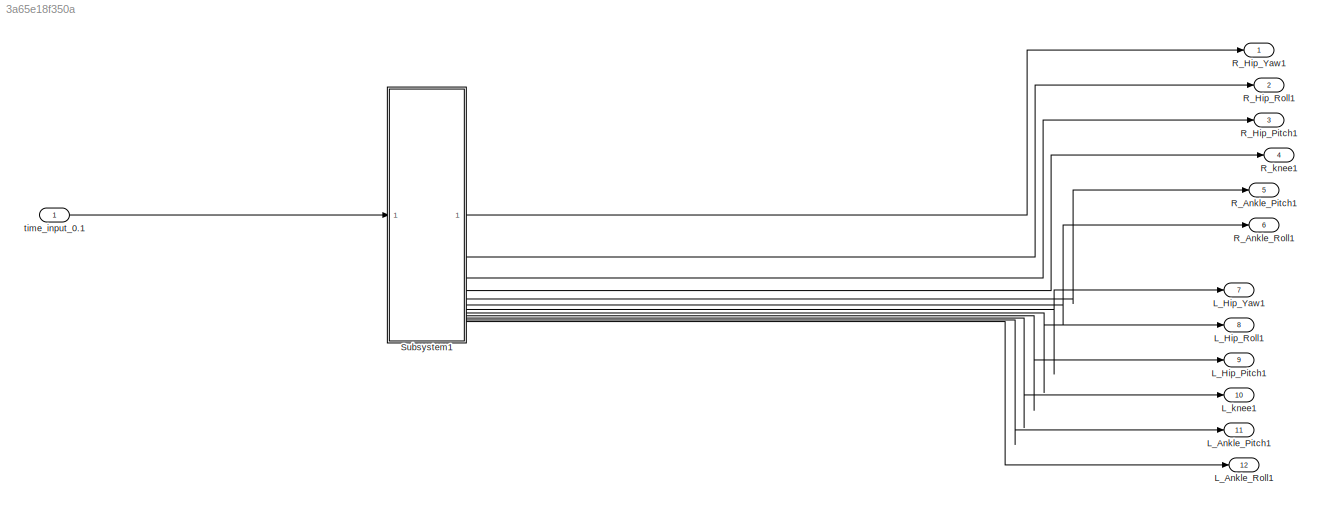
MODEL slx_3a65e18f350a
KIND model
CONFIG AbsTol = auto
CONFIG EnableMultiTasking = off
CONFIG FixedStep = auto
CONFIG MaxStep = auto
CONFIG MinStep = auto
CONFIG RelTol = 1e-3
CONFIG SampleTimeConstraint = Unconstrained
CONFIG SolverName = VariableStepAuto
CONFIG StartTime = 0.0
CONFIG StopTime = 10.0
BLOCK [Outport] L_Ankle_Pitch1
  Port = 11
BLOCK [Outport] L_Ankle_Roll1
  Port = 12
BLOCK [Outport] L_Hip_Pitch1
  Port = 9
BLOCK [Outport] L_Hip_Roll1
  Port = 8
BLOCK [Outport] L_Hip_Yaw1
  Port = 7
BLOCK [Outport] L_knee1
  Port = 10
BLOCK [Outport] R_Ankle_Pitch1
  Port = 5
BLOCK [Outport] R_Ankle_Roll1
  Port = 6
BLOCK [Outport] R_Hip_Pitch1
  Port = 3
BLOCK [Outport] R_Hip_Roll1
  Port = 2
BLOCK [Outport] R_Hip_Yaw1
BLOCK [Outport] R_knee1
  Port = 4
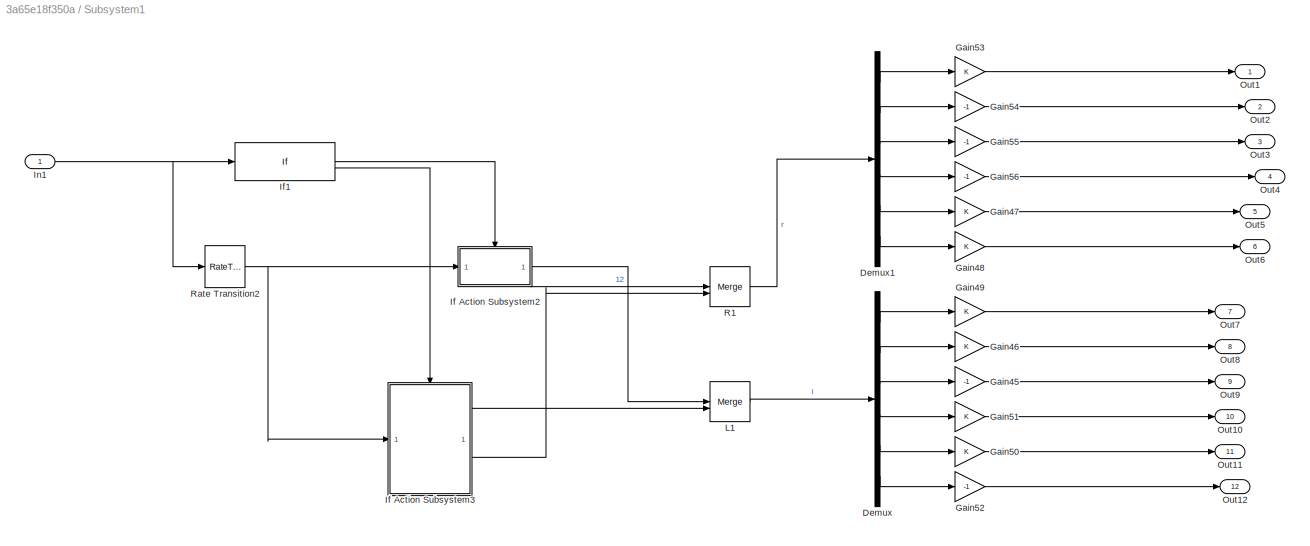
BLOCK [SubSystem] Subsystem1
BLOCK [Demux] Subsystem1/Demux
  Outputs = 6
BLOCK [Demux] Subsystem1/Demux1
  Outputs = 6
BLOCK [Gain] Subsystem1/Gain45
  Gain = -1
BLOCK [Gain] Subsystem1/Gain46
BLOCK [Gain] Subsystem1/Gain47
BLOCK [Gain] Subsystem1/Gain48
BLOCK [Gain] Subsystem1/Gain49
BLOCK [Gain] Subsystem1/Gain50
BLOCK [Gain] Subsystem1/Gain51
BLOCK [Gain] Subsystem1/Gain52
  Gain = -1
BLOCK [Gain] Subsystem1/Gain53
BLOCK [Gain] Subsystem1/Gain54
  Gain = -1
BLOCK [Gain] Subsystem1/Gain55
  Gain = -1
BLOCK [Gain] Subsystem1/Gain56
  Gain = -1
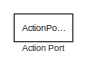
[diagram: Subsystem1/If Action Subsystem2 - part 1/4, top right region]
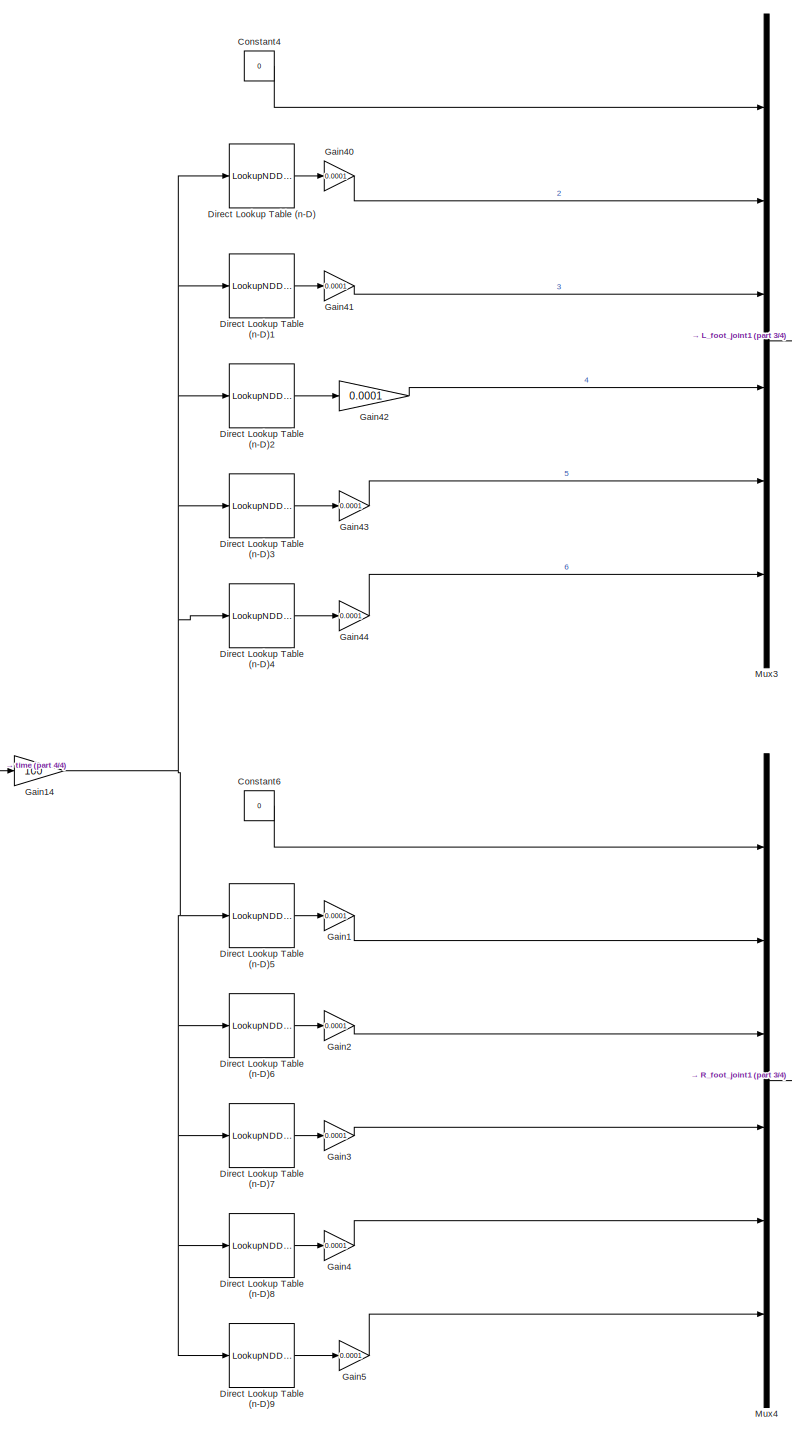
[diagram: Subsystem1/If Action Subsystem2 - part 2/4, central region]
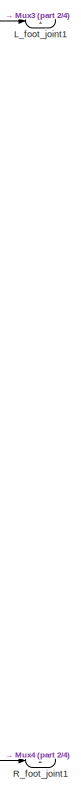
[diagram: Subsystem1/If Action Subsystem2 - part 3/4, middle right region]
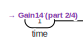
[diagram: Subsystem1/If Action Subsystem2 - part 4/4, bottom left region]
BLOCK [SubSystem] Subsystem1/If Action Subsystem2
  TreatAsAtomicUnit = on
BLOCK [ActionPort] Subsystem1/If Action Subsystem2/Action Port
BLOCK [Constant] Subsystem1/If Action Subsystem2/Constant4
  SampleTime = -1
  Value = 0
BLOCK [Constant] Subsystem1/If Action Subsystem2/Constant6
  SampleTime = -1
  Value = 0
BLOCK [LookupNDDirect] Subsystem1/If Action Subsystem2/Direct Lookup Table (n-D)
  NumberOfTableDimensions = 1
  RemoveProtectionInput = on
  Table = [0;0;0;0;0;0;0;0;0;0;0;0;0;0;0;0;0;0;0;0;0;0;0;0;0;0;0;0;0;0;0;0;0;0;0;0;0;0;0;0;0;0;0;0;0;0;0;0;0;0;0;0;0;0;0;0;0;0;0;0;0;0;0;0;0;0;0;0;0;0;0;0;0;0;0;0;0;0;0;0;0;0;0;0;0;0;0;0;0;0;0;0;0;0;0;0;0;0;0;0;0;0;0;0;0;0;0;0;0;0;0;0;0;0;0;0;0;0;0;0;0;0;0;0;0;0;0;0;0;0;0;0;0;0;0;0;0;0;0;0;0;0;0;0;0;0;0;0;0;0;0;0;0;0;0;0;0;0;0;0;0;0;0;0;0;0;0;0;0;0;0;0;0;0;0;0;0;0;0;0;0;0;0;0;0;0;0;0;0;0;0;0;0;0;0;0;0;0;0;0...<+6884ch>
BLOCK [LookupNDDirect] Subsystem1/If Action Subsystem2/Direct Lookup Table (n-D)1
  NumberOfTableDimensions = 1
  RemoveProtectionInput = on
  Table = [0;0;0;0;0;0;0;0;0;0;0;0;0;0;0;0;0;0;0;0;0;0;0;0;0;0;0;0;0;0;0;0;0;0;0;0;0;0;0;0;0;0;0;0;0;0;0;0;0;0;0;0;0;0;0;0;0;0;0;0;0;0;0;0;0;0;0;0;0;0;0;0;0;0;0;0;0;0;0;0;0;0;0;0;0;0;0;0;0;0;0;0;0;0;0;0;0;0;0;0;0;0;0;0;0;0;0;0;0;0;0;0;0;0;0;0;0;0;0;0;0;0;0;0;0;0;0;0;0;0;0;0;0;0;0;0;0;0;0;0;0;0;0;0;0;0;0;0;0;0;0;0;0;0;0;0;0;0;0;0;0;0;0;0;0;0;0;0;0;0;0;0;0;0;0;0;0;0;0;0;0;0;0;0;0;0;0;0;0;0;0;0;0;0;0;0;0;0;0;0...<+8058ch>
BLOCK [LookupNDDirect] Subsystem1/If Action Subsystem2/Direct Lookup Table (n-D)2
  NumberOfTableDimensions = 1
  RemoveProtectionInput = on
  Table = [0;0;0;0;0;0;0;0;0;0;0;0;0;0;0;0;0;0;0;0;0;0;0;0;0;0;0;0;0;0;0;0;0;0;0;0;0;0;0;0;0;0;0;0;0;0;0;0;0;0;0;0;0;0;0;0;0;0;0;0;0;0;0;0;0;0;0;0;0;0;0;0;0;0;0;0;0;0;0;0;0;0;0;0;0;0;0;0;0;0;0;0;0;0;0;0;0;0;0;0;0;0;0;0;0;0;0;0;0;0;0;0;0;0;0;0;0;0;0;0;0;0;0;0;0;0;0;0;0;0;0;0;0;0;0;0;0;0;0;0;0;0;0;0;0;0;0;0;0;0;0;0;0;0;0;0;0;0;0;0;0;0;0;0;0;0;0;0;0;0;0;0;0;0;0;0;0;0;0;0;0;0;0;0;0;0;0;0;0;0;0;0;0;0;0;0;0;0;0;0...<+9363ch>
BLOCK [LookupNDDirect] Subsystem1/If Action Subsystem2/Direct Lookup Table (n-D)3
  NumberOfTableDimensions = 1
  RemoveProtectionInput = on
  Table = [0;0;0;0;0;0;0;0;0;0;0;0;0;0;0;0;0;0;0;0;0;0;0;0;0;0;0;0;0;0;0;0;0;0;0;0;0;0;0;0;0;0;0;0;0;0;0;0;0;0;0;0;0;0;0;0;0;0;0;0;0;0;0;0;0;0;0;0;0;0;0;0;0;0;0;0;0;0;0;0;0;0;0;0;0;0;0;0;0;0;0;0;0;0;0;0;0;0;0;0;0;0;0;0;0;0;0;0;0;0;0;0;0;0;0;0;0;0;0;0;0;0;0;0;0;0;0;0;0;0;0;0;0;0;0;0;0;0;0;0;0;0;0;0;0;0;0;0;0;0;0;0;0;0;0;0;0;0;0;0;0;0;0;0;0;0;0;0;0;0;0;0;0;0;0;0;0;0;0;0;0;0;0;0;0;0;0;0;0;0;0;0;0;0;0;0;0;0;0;0...<+8314ch>
BLOCK [LookupNDDirect] Subsystem1/If Action Subsystem2/Direct Lookup Table (n-D)4
  NumberOfTableDimensions = 1
  RemoveProtectionInput = on
  Table = [0;0;0;0;0;0;0;0;0;0;0;0;0;0;0;0;0;0;0;0;0;0;0;0;0;0;0;0;0;0;0;0;0;0;0;0;0;0;0;0;0;0;0;0;0;0;0;0;0;0;0;0;0;0;0;0;0;0;0;0;0;0;0;0;0;0;0;0;0;0;0;0;0;0;0;0;0;0;0;0;0;0;0;0;0;0;0;0;0;0;0;0;0;0;0;0;0;0;0;0;0;0;0;0;0;0;0;0;0;0;0;0;0;0;0;0;0;0;0;0;0;0;0;0;0;0;0;0;0;0;0;0;0;0;0;0;0;0;0;0;0;0;0;0;0;0;0;0;0;0;0;0;0;0;0;0;0;0;0;0;0;0;0;0;0;0;0;0;0;0;0;0;0;0;0;0;0;0;0;0;0;0;0;0;0;0;0;0;0;0;0;0;0;0;0;0;0;0;0;0...<+5915ch>
BLOCK [LookupNDDirect] Subsystem1/If Action Subsystem2/Direct Lookup Table (n-D)5
  NumberOfTableDimensions = 1
  RemoveProtectionInput = on
  Table = [0;0;0;0;0;0;0;0;0;0;0;0;0;0;0;0;0;0;0;0;0;0;0;0;0;0;0;0;0;0;0;0;0;0;0;0;0;0;0;0;0;0;0;0;0;0;0;0;0;0;0;0;0;0;0;0;0;0;0;0;0;0;0;0;0;0;0;0;0;0;0;0;0;0;0;0;0;0;0;0;0;0;0;0;0;0;0;0;0;0;0;0;0;0;0;0;0;0;0;0;0;0;0;0;0;0;0;0;0;0;0;0;0;0;0;0;0;0;0;0;0;0;0;0;0;0;0;0;0;0;0;0;0;0;0;0;0;0;0;0;0;0;0;0;0;0;0;0;0;0;0;0;0;0;0;0;0;0;0;0;0;0;0;0;0;0;0;0;0;0;0;0;0;0;0;0;0;0;0;0;0;0;0;0;0;0;0;0;0;0;0;0;0;0;0;0;0;0;0;0...<+6884ch>
BLOCK [LookupNDDirect] Subsystem1/If Action Subsystem2/Direct Lookup Table (n-D)6
  NumberOfTableDimensions = 1
  RemoveProtectionInput = on
  Table = [0;0;0;0;0;0;0;0;0;0;0;0;0;0;0;0;0;0;0;0;0;0;0;0;0;0;0;0;0;0;0;0;0;0;0;0;0;0;0;0;0;0;0;0;0;0;0;0;0;0;0;0;0;0;0;0;0;0;0;0;0;0;0;0;0;0;0;0;0;0;0;0;0;0;0;0;0;0;0;0;0;0;0;0;0;0;0;0;0;0;0;0;0;0;0;0;0;0;0;0;0;0;0;0;0;0;0;0;0;0;0;0;0;0;0;0;0;0;0;0;0;0;0;0;0;0;0;0;0;0;0;0;0;0;0;0;0;0;0;0;0;0;0;0;0;0;0;0;0;0;0;0;0;0;0;0;0;0;0;0;0;0;0;0;0;0;0;0;0;0;0;0;0;0;0;0;0;0;0;0;0;0;0;0;0;0;0;0;0;0;0;0;0;0;0;0;0;0;0;0...<+8058ch>
BLOCK [LookupNDDirect] Subsystem1/If Action Subsystem2/Direct Lookup Table (n-D)7
  NumberOfTableDimensions = 1
  RemoveProtectionInput = on
  Table = [0;0;0;0;0;0;0;0;0;0;0;0;0;0;0;0;0;0;0;0;0;0;0;0;0;0;0;0;0;0;0;0;0;0;0;0;0;0;0;0;0;0;0;0;0;0;0;0;0;0;0;0;0;0;0;0;0;0;0;0;0;0;0;0;0;0;0;0;0;0;0;0;0;0;0;0;0;0;0;0;0;0;0;0;0;0;0;0;0;0;0;0;0;0;0;0;0;0;0;0;0;0;0;0;0;0;0;0;0;0;0;0;0;0;0;0;0;0;0;0;0;0;0;0;0;0;0;0;0;0;0;0;0;0;0;0;0;0;0;0;0;0;0;0;0;0;0;0;0;0;0;0;0;0;0;0;0;0;0;0;0;0;0;0;0;0;0;0;0;0;0;0;0;0;0;0;0;0;0;0;0;0;0;0;0;0;0;0;0;0;0;0;0;0;0;0;0;0;0;0...<+9363ch>
BLOCK [LookupNDDirect] Subsystem1/If Action Subsystem2/Direct Lookup Table (n-D)8
  NumberOfTableDimensions = 1
  RemoveProtectionInput = on
  Table = [0;0;0;0;0;0;0;0;0;0;0;0;0;0;0;0;0;0;0;0;0;0;0;0;0;0;0;0;0;0;0;0;0;0;0;0;0;0;0;0;0;0;0;0;0;0;0;0;0;0;0;0;0;0;0;0;0;0;0;0;0;0;0;0;0;0;0;0;0;0;0;0;0;0;0;0;0;0;0;0;0;0;0;0;0;0;0;0;0;0;0;0;0;0;0;0;0;0;0;0;0;0;0;0;0;0;0;0;0;0;0;0;0;0;0;0;0;0;0;0;0;0;0;0;0;0;0;0;0;0;0;0;0;0;0;0;0;0;0;0;0;0;0;0;0;0;0;0;0;0;0;0;0;0;0;0;0;0;0;0;0;0;0;0;0;0;0;0;0;0;0;0;0;0;0;0;0;0;0;0;0;0;0;0;0;0;0;0;0;0;0;0;0;0;0;0;0;0;0;0...<+8075ch>
BLOCK [LookupNDDirect] Subsystem1/If Action Subsystem2/Direct Lookup Table (n-D)9
  NumberOfTableDimensions = 1
  RemoveProtectionInput = on
  Table = [0;0;0;0;0;0;0;0;0;0;0;0;0;0;0;0;0;0;0;0;0;0;0;0;0;0;0;0;0;0;0;0;0;0;0;0;0;0;0;0;0;0;0;0;0;0;0;0;0;0;0;0;0;0;0;0;0;0;0;0;0;0;0;0;0;0;0;0;0;0;0;0;0;0;0;0;0;0;0;0;0;0;0;0;0;0;0;0;0;0;0;0;0;0;0;0;0;0;0;0;0;0;0;0;0;0;0;0;0;0;0;0;0;0;0;0;0;0;0;0;0;0;0;0;0;0;0;0;0;0;0;0;0;0;0;0;0;0;0;0;0;0;0;0;0;0;0;0;0;0;0;0;0;0;0;0;0;0;0;0;0;0;0;0;0;0;0;0;0;0;0;0;0;0;0;0;0;0;0;0;0;0;0;0;0;0;0;0;0;0;0;0;0;0;0;0;0;0;0;0...<+5915ch>
BLOCK [Gain] Subsystem1/If Action Subsystem2/Gain1
  Gain = 0.0001
BLOCK [Gain] Subsystem1/If Action Subsystem2/Gain14
  Gain = 100
BLOCK [Gain] Subsystem1/If Action Subsystem2/Gain2
  Gain = 0.0001
BLOCK [Gain] Subsystem1/If Action Subsystem2/Gain3
  Gain = 0.0001
BLOCK [Gain] Subsystem1/If Action Subsystem2/Gain4
  Gain = 0.0001
BLOCK [Gain] Subsystem1/If Action Subsystem2/Gain40
  Gain = 0.0001
BLOCK [Gain] Subsystem1/If Action Subsystem2/Gain41
  Gain = 0.0001
BLOCK [Gain] Subsystem1/If Action Subsystem2/Gain42
  Gain = 0.0001
BLOCK [Gain] Subsystem1/If Action Subsystem2/Gain43
  Gain = 0.0001
BLOCK [Gain] Subsystem1/If Action Subsystem2/Gain44
  Gain = 0.0001
BLOCK [Gain] Subsystem1/If Action Subsystem2/Gain5
  Gain = 0.0001
BLOCK [Outport] Subsystem1/If Action Subsystem2/L_foot_joint1
BLOCK [Mux] Subsystem1/If Action Subsystem2/Mux3
  DisplayOption = bar
  Inputs = 6
BLOCK [Mux] Subsystem1/If Action Subsystem2/Mux4
  DisplayOption = bar
  Inputs = 6
BLOCK [Outport] Subsystem1/If Action Subsystem2/R_foot_joint1
  Port = 2
BLOCK [Inport] Subsystem1/If Action Subsystem2/time
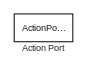
[diagram: Subsystem1/If Action Subsystem3 - part 1/4, top center region]
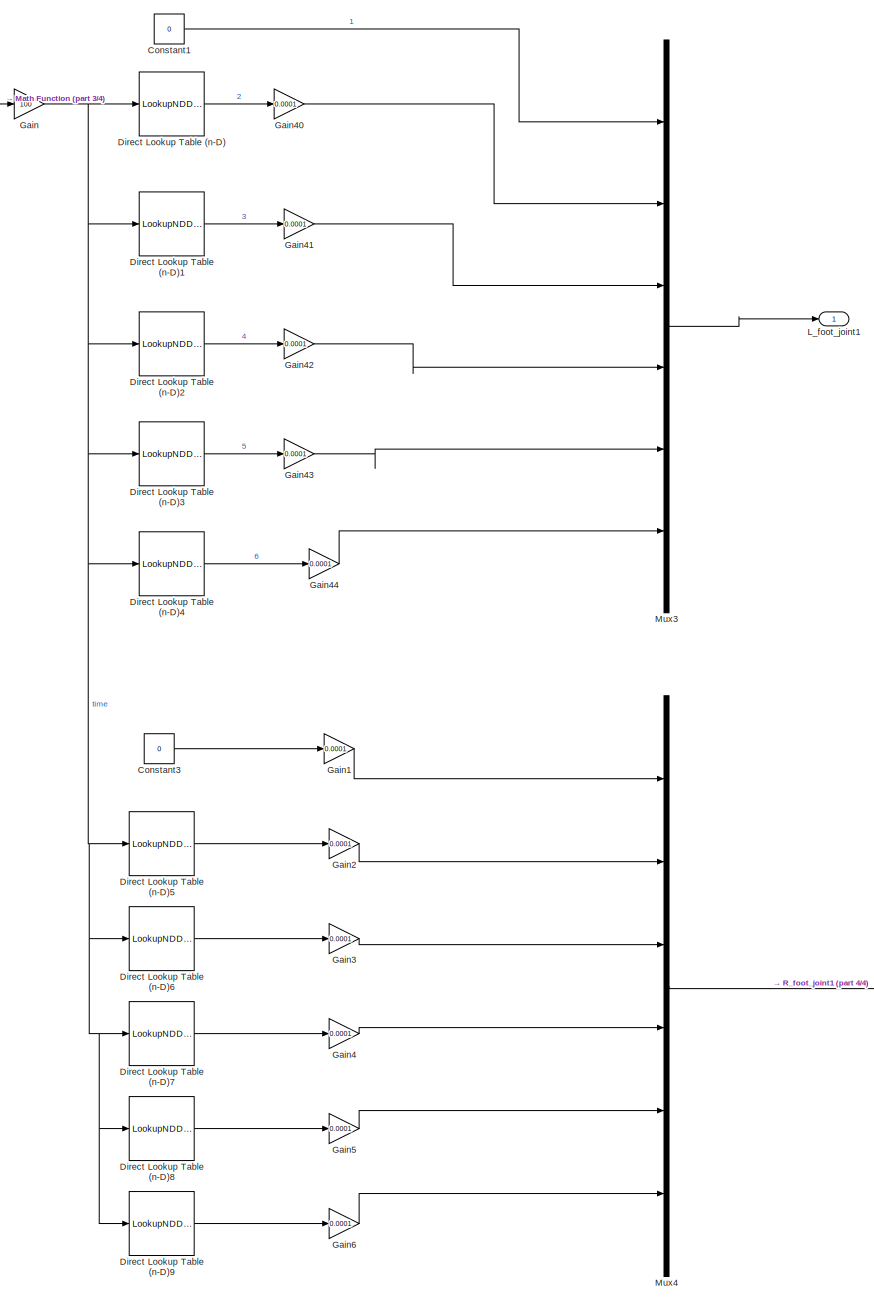
[diagram: Subsystem1/If Action Subsystem3 - part 2/4, center side, full height]
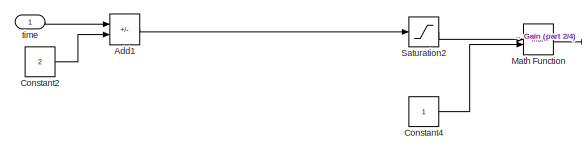
[diagram: Subsystem1/If Action Subsystem3 - part 3/4, top left region]
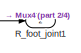
[diagram: Subsystem1/If Action Subsystem3 - part 4/4, bottom right region]
BLOCK [SubSystem] Subsystem1/If Action Subsystem3
  TreatAsAtomicUnit = on
BLOCK [ActionPort] Subsystem1/If Action Subsystem3/Action Port
BLOCK [Sum] Subsystem1/If Action Subsystem3/Add1
  IconShape = rectangular
  Inputs = +-
BLOCK [Constant] Subsystem1/If Action Subsystem3/Constant1
  SampleTime = -1
  Value = 0
BLOCK [Constant] Subsystem1/If Action Subsystem3/Constant2
  Value = 2
BLOCK [Constant] Subsystem1/If Action Subsystem3/Constant3
  SampleTime = -1
  Value = 0
BLOCK [Constant] Subsystem1/If Action Subsystem3/Constant4
BLOCK [LookupNDDirect] Subsystem1/If Action Subsystem3/Direct Lookup Table (n-D)
  NumberOfTableDimensions = 1
  RemoveProtectionInput = on
  Table = [-65;-45;-25;-5;16;36;56;76;97;117;137;157;177;197;217;237;257;277;296;316;336;355;375;395;414;433;453;472;491;510;529;548;567;586;605;623;642;660;679;697;715;733;751;769;787;805;823;840;858;875;892;909;926;943;960;977;993;1010;1026;1043;1059;1075;1091;1107;1122;1138;1153;1169;1184;1199;1214;1229;1244;1259;1274;1288;1302;1317;1331;1345;1359;1373;1386;1400;1413;1427;1440;1453;1466;1479;1492;1505;15...<+4858ch>
BLOCK [LookupNDDirect] Subsystem1/If Action Subsystem3/Direct Lookup Table (n-D)1
  NumberOfTableDimensions = 1
  RemoveProtectionInput = on
  Table = [5684;5686;5688;5690;5692;5694;5696;5698;5700;5702;5704;5706;5707;5709;5711;5712;5714;5715;5717;5718;5720;5721;5722;5723;5725;5726;5727;5728;5729;5730;5731;5732;5732;5733;5734;5735;5735;5736;5737;5737;5738;5738;5739;5739;5739;5740;5740;5740;5741;5741;5741;5741;5741;5741;5741;5741;5741;5741;5741;5741;5741;5741;5741;5741;5740;5740;5740;5740;5739;5739;5739;5738;5738;5737;5737;5736;5736;5735;5735;5734...<+4601ch>
BLOCK [LookupNDDirect] Subsystem1/If Action Subsystem3/Direct Lookup Table (n-D)2
  NumberOfTableDimensions = 1
  RemoveProtectionInput = on
  Table = [14920;14927;14933;14940;14947;14953;14959;14965;14971;14977;14982;14988;14993;14998;15003;15008;15013;15018;15022;15026;15031;15035;15039;15042;15046;15049;15053;15056;15059;15062;15065;15068;15070;15073;15075;15078;15080;15082;15083;15085;15087;15088;15090;15091;15092;15093;15094;15095;15096;15097;15097;15098;15098;15098;15098;15098;15098;15098;15098;15098;15097;15097;15096;15096;15095;15094;150...<+5601ch>
BLOCK [LookupNDDirect] Subsystem1/If Action Subsystem3/Direct Lookup Table (n-D)3
  NumberOfTableDimensions = 1
  RemoveProtectionInput = on
  Table = [9236;9241;9245;9250;9254;9258;9263;9267;9271;9275;9278;9282;9286;9289;9293;9296;9299;9302;9305;9308;9311;9314;9316;9319;9321;9324;9326;9328;9330;9332;9334;9336;9338;9340;9341;9343;9344;9346;9347;9348;9349;9350;9351;9352;9353;9353;9354;9355;9355;9356;9356;9356;9357;9357;9357;9357;9357;9357;9357;9356;9356;9356;9356;9355;9355;9354;9354;9353;9352;9352;9351;9350;9349;9348;9347;9346;9345;9344;9343;9342...<+4847ch>
BLOCK [LookupNDDirect] Subsystem1/If Action Subsystem3/Direct Lookup Table (n-D)4
  NumberOfTableDimensions = 1
  RemoveProtectionInput = on
  Table = [65;45;25;5;-16;-36;-56;-76;-97;-117;-137;-157;-177;-197;-217;-237;-257;-277;-296;-316;-336;-355;-375;-395;-414;-433;-453;-472;-491;-510;-529;-548;-567;-586;-605;-623;-642;-660;-679;-697;-715;-733;-751;-769;-787;-805;-823;-840;-858;-875;-892;-909;-926;-943;-960;-977;-993;-1010;-1026;-1043;-1059;-1075;-1091;-1107;-1122;-1138;-1153;-1169;-1184;-1199;-1214;-1229;-1244;-1259;-1274;-1288;-1302;-1317;-1...<+4849ch>
BLOCK [LookupNDDirect] Subsystem1/If Action Subsystem3/Direct Lookup Table (n-D)5
  NumberOfTableDimensions = 1
  RemoveProtectionInput = on
  Table = [-65;-45;-25;-5;16;36;56;76;97;117;137;157;177;197;217;237;257;277;296;316;336;355;375;395;414;433;453;472;491;510;530;549;568;587;605;624;643;662;680;699;717;736;754;772;791;809;827;845;863;881;898;916;934;951;969;986;1004;1021;1038;1055;1072;1089;1106;1123;1140;1156;1173;1190;1206;1222;1239;1255;1271;1287;1303;1319;1335;1351;1366;1382;1398;1413;1428;1444;1459;1474;1489;1504;1519;1534;1549;1564;1...<+4860ch>
BLOCK [LookupNDDirect] Subsystem1/If Action Subsystem3/Direct Lookup Table (n-D)6
  NumberOfTableDimensions = 1
  RemoveProtectionInput = on
  Table = [5668;5666;5664;5662;5659;5657;5655;5652;5650;5647;5645;5642;5639;5637;5634;5631;5628;5625;5623;5620;5617;5614;5611;5607;5604;5602;5599;5596;5594;5592;5590;5588;5586;5585;5584;5583;5582;5581;5580;5580;5580;5579;5580;5580;5580;5581;5582;5583;5584;5585;5586;5588;5590;5591;5594;5596;5598;5601;5603;5606;5609;5612;5615;5619;5622;5626;5630;5634;5638;5642;5647;5651;5656;5661;5665;5670;5676;5681;5686;5692...<+4601ch>
BLOCK [LookupNDDirect] Subsystem1/If Action Subsystem3/Direct Lookup Table (n-D)7
  NumberOfTableDimensions = 1
  RemoveProtectionInput = on
  Table = [14873;14866;14859;14853;14846;14838;14831;14824;14816;14808;14801;14793;14784;14776;14768;14759;14751;14742;14733;14724;14715;14706;14696;14687;14678;14669;14661;14653;14646;14640;14634;14628;14623;14619;14615;14612;14609;14606;14605;14603;14603;14602;14603;14603;14605;14606;14609;14611;14615;14619;14623;14628;14633;14639;14645;14651;14659;14666;14674;14683;14692;14701;14711;14722;14733;14744;147...<+5601ch>
BLOCK [LookupNDDirect] Subsystem1/If Action Subsystem3/Direct Lookup Table (n-D)8
  NumberOfTableDimensions = 1
  RemoveProtectionInput = on
  Table = [9205;9200;9196;9191;9186;9181;9176;9171;9166;9161;9156;9151;9145;9140;9134;9128;9122;9117;9111;9105;9098;9092;9086;9080;9073;9068;9062;9057;9052;9048;9044;9040;9037;9034;9031;9029;9027;9026;9024;9024;9023;9023;9023;9024;9024;9026;9027;9029;9031;9034;9037;9040;9043;9047;9051;9056;9061;9066;9071;9077;9083;9089;9096;9103;9110;9118;9126;9134;9142;9151;9160;9169;9179;9189;9199;9209;9220;9231;9242;9253...<+4846ch>
BLOCK [LookupNDDirect] Subsystem1/If Action Subsystem3/Direct Lookup Table (n-D)9
  NumberOfTableDimensions = 1
  RemoveProtectionInput = on
  Table = [65;45;25;5;-16;-36;-56;-76;-97;-117;-137;-157;-177;-197;-217;-237;-257;-277;-296;-316;-336;-355;-375;-395;-414;-433;-453;-472;-491;-510;-530;-549;-568;-587;-605;-624;-643;-662;-680;-699;-717;-736;-754;-772;-791;-809;-827;-845;-863;-881;-898;-916;-934;-951;-969;-986;-1004;-1021;-1038;-1055;-1072;-1089;-1106;-1123;-1140;-1156;-1173;-1190;-1206;-1222;-1239;-1255;-1271;-1287;-1303;-1319;-1335;-1351;-...<+4851ch>
BLOCK [Gain] Subsystem1/If Action Subsystem3/Gain
  Gain = 100
BLOCK [Gain] Subsystem1/If Action Subsystem3/Gain1
  Gain = 0.0001
BLOCK [Gain] Subsystem1/If Action Subsystem3/Gain2
  Gain = 0.0001
BLOCK [Gain] Subsystem1/If Action Subsystem3/Gain3
  Gain = 0.0001
BLOCK [Gain] Subsystem1/If Action Subsystem3/Gain4
  Gain = 0.0001
BLOCK [Gain] Subsystem1/If Action Subsystem3/Gain40
  Gain = 0.0001
BLOCK [Gain] Subsystem1/If Action Subsystem3/Gain41
  Gain = 0.0001
BLOCK [Gain] Subsystem1/If Action Subsystem3/Gain42
  Gain = 0.0001
BLOCK [Gain] Subsystem1/If Action Subsystem3/Gain43
  Gain = 0.0001
BLOCK [Gain] Subsystem1/If Action Subsystem3/Gain44
  Gain = 0.0001
BLOCK [Gain] Subsystem1/If Action Subsystem3/Gain5
  Gain = 0.0001
BLOCK [Gain] Subsystem1/If Action Subsystem3/Gain6
  Gain = 0.0001
BLOCK [Outport] Subsystem1/If Action Subsystem3/L_foot_joint1
BLOCK [Math] Subsystem1/If Action Subsystem3/Math Function
  Operator = mod
BLOCK [Mux] Subsystem1/If Action Subsystem3/Mux3
  DisplayOption = bar
  Inputs = 6
BLOCK [Mux] Subsystem1/If Action Subsystem3/Mux4
  DisplayOption = bar
  Inputs = 6
BLOCK [Outport] Subsystem1/If Action Subsystem3/R_foot_joint1
  Port = 2
BLOCK [Saturate] Subsystem1/If Action Subsystem3/Saturation2
  LowerLimit = 0
  UpperLimit = inf
BLOCK [Inport] Subsystem1/If Action Subsystem3/time
BLOCK [If] Subsystem1/If1
  IfExpression = u1<= 2
BLOCK [Inport] Subsystem1/In1
BLOCK [Merge] Subsystem1/L1
BLOCK [Outport] Subsystem1/Out1
BLOCK [Outport] Subsystem1/Out10
  Port = 10
BLOCK [Outport] Subsystem1/Out11
  Port = 11
BLOCK [Outport] Subsystem1/Out12
  Port = 12
BLOCK [Outport] Subsystem1/Out2
  Port = 2
BLOCK [Outport] Subsystem1/Out3
  Port = 3
BLOCK [Outport] Subsystem1/Out4
  Port = 4
BLOCK [Outport] Subsystem1/Out5
  Port = 5
BLOCK [Outport] Subsystem1/Out6
  Port = 6
BLOCK [Outport] Subsystem1/Out7
  Port = 7
BLOCK [Outport] Subsystem1/Out8
  Port = 8
BLOCK [Outport] Subsystem1/Out9
  Port = 9
BLOCK [Merge] Subsystem1/R1
BLOCK [RateTransition] Subsystem1/Rate Transition2
  OutPortSampleTime = 0.001
BLOCK [Inport] time_input_0.1
LINE Subsystem1/Demux1:1 -> Subsystem1/Gain53:1
LINE Subsystem1/Demux1:2 -> Subsystem1/Gain54:1
LINE Subsystem1/Demux1:3 -> Subsystem1/Gain55:1
LINE Subsystem1/Demux1:4 -> Subsystem1/Gain56:1
LINE Subsystem1/Demux1:5 -> Subsystem1/Gain47:1
LINE Subsystem1/Demux1:6 -> Subsystem1/Gain48:1
LINE Subsystem1/Demux:1 -> Subsystem1/Gain49:1
LINE Subsystem1/Demux:2 -> Subsystem1/Gain46:1
LINE Subsystem1/Demux:3 -> Subsystem1/Gain45:1
LINE Subsystem1/Demux:4 -> Subsystem1/Gain51:1
LINE Subsystem1/Demux:5 -> Subsystem1/Gain50:1
LINE Subsystem1/Demux:6 -> Subsystem1/Gain52:1
LINE Subsystem1/Gain45:1 -> Subsystem1/Out9:1
LINE Subsystem1/Gain46:1 -> Subsystem1/Out8:1
LINE Subsystem1/Gain47:1 -> Subsystem1/Out5:1
LINE Subsystem1/Gain48:1 -> Subsystem1/Out6:1
LINE Subsystem1/Gain49:1 -> Subsystem1/Out7:1
LINE Subsystem1/Gain50:1 -> Subsystem1/Out11:1
LINE Subsystem1/Gain51:1 -> Subsystem1/Out10:1
LINE Subsystem1/Gain52:1 -> Subsystem1/Out12:1
LINE Subsystem1/Gain53:1 -> Subsystem1/Out1:1
LINE Subsystem1/Gain54:1 -> Subsystem1/Out2:1
LINE Subsystem1/Gain55:1 -> Subsystem1/Out3:1
LINE Subsystem1/Gain56:1 -> Subsystem1/Out4:1
LINE Subsystem1/If Action Subsystem2/Constant4:1 -> Subsystem1/If Action Subsystem2/Mux3:1
LINE Subsystem1/If Action Subsystem2/Constant6:1 -> Subsystem1/If Action Subsystem2/Mux4:1
LINE Subsystem1/If Action Subsystem2/Direct Lookup Table (n-D)1:1 -> Subsystem1/If Action Subsystem2/Gain41:1
LINE Subsystem1/If Action Subsystem2/Direct Lookup Table (n-D)2:1 -> Subsystem1/If Action Subsystem2/Gain42:1
LINE Subsystem1/If Action Subsystem2/Direct Lookup Table (n-D)3:1 -> Subsystem1/If Action Subsystem2/Gain43:1
LINE Subsystem1/If Action Subsystem2/Direct Lookup Table (n-D)4:1 -> Subsystem1/If Action Subsystem2/Gain44:1
LINE Subsystem1/If Action Subsystem2/Direct Lookup Table (n-D)5:1 -> Subsystem1/If Action Subsystem2/Gain1:1
LINE Subsystem1/If Action Subsystem2/Direct Lookup Table (n-D)6:1 -> Subsystem1/If Action Subsystem2/Gain2:1
LINE Subsystem1/If Action Subsystem2/Direct Lookup Table (n-D)7:1 -> Subsystem1/If Action Subsystem2/Gain3:1
LINE Subsystem1/If Action Subsystem2/Direct Lookup Table (n-D)8:1 -> Subsystem1/If Action Subsystem2/Gain4:1
LINE Subsystem1/If Action Subsystem2/Direct Lookup Table (n-D)9:1 -> Subsystem1/If Action Subsystem2/Gain5:1
LINE Subsystem1/If Action Subsystem2/Direct Lookup Table (n-D):1 -> Subsystem1/If Action Subsystem2/Gain40:1
NET Subsystem1/If Action Subsystem2/Gain14:1 -> Subsystem1/If Action Subsystem2/Direct Lookup Table (n-D)1:1, Subsystem1/If Action Subsystem2/Direct Lookup Table (n-D)2:1, Subsystem1/If Action Subsystem2/Direct Lookup Table (n-D)3:1, Subsystem1/If Action Subsystem2/Direct Lookup Table (n-D)4:1, Subsystem1/If Action Subsystem2/Direct Lookup Table (n-D)5:1, Subsystem1/If Action Subsystem2/Direct Lookup Table (n-D)6:1, Subsystem1/If Action Subsystem2/Direct Lookup Table (n-D)7:1, Subsystem1/If Action Subsystem2/Direct Lookup Table (n-D)8:1, Subsystem1/If Action Subsystem2/Direct Lookup Table (n-D)9:1, Subsystem1/If Action Subsystem2/Direct Lookup Table (n-D):1
LINE Subsystem1/If Action Subsystem2/Gain1:1 -> Subsystem1/If Action Subsystem2/Mux4:2
LINE Subsystem1/If Action Subsystem2/Gain2:1 -> Subsystem1/If Action Subsystem2/Mux4:3
LINE Subsystem1/If Action Subsystem2/Gain3:1 -> Subsystem1/If Action Subsystem2/Mux4:4
LINE Subsystem1/If Action Subsystem2/Gain40:1 -> Subsystem1/If Action Subsystem2/Mux3:2
LINE Subsystem1/If Action Subsystem2/Gain41:1 -> Subsystem1/If Action Subsystem2/Mux3:3
LINE Subsystem1/If Action Subsystem2/Gain42:1 -> Subsystem1/If Action Subsystem2/Mux3:4
LINE Subsystem1/If Action Subsystem2/Gain43:1 -> Subsystem1/If Action Subsystem2/Mux3:5
LINE Subsystem1/If Action Subsystem2/Gain44:1 -> Subsystem1/If Action Subsystem2/Mux3:6
LINE Subsystem1/If Action Subsystem2/Gain4:1 -> Subsystem1/If Action Subsystem2/Mux4:5
LINE Subsystem1/If Action Subsystem2/Gain5:1 -> Subsystem1/If Action Subsystem2/Mux4:6
LINE Subsystem1/If Action Subsystem2/Mux3:1 -> Subsystem1/If Action Subsystem2/L_foot_joint1:1
LINE Subsystem1/If Action Subsystem2/Mux4:1 -> Subsystem1/If Action Subsystem2/R_foot_joint1:1
LINE Subsystem1/If Action Subsystem2/time:1 -> Subsystem1/If Action Subsystem2/Gain14:1
LINE Subsystem1/If Action Subsystem2:1 -> Subsystem1/L1:1
LINE Subsystem1/If Action Subsystem2:2 -> Subsystem1/R1:1
LINE Subsystem1/If Action Subsystem3/Add1:1 -> Subsystem1/If Action Subsystem3/Saturation2:1
LINE Subsystem1/If Action Subsystem3/Constant1:1 -> Subsystem1/If Action Subsystem3/Mux3:1
LINE Subsystem1/If Action Subsystem3/Constant2:1 -> Subsystem1/If Action Subsystem3/Add1:2
LINE Subsystem1/If Action Subsystem3/Constant3:1 -> Subsystem1/If Action Subsystem3/Gain1:1
LINE Subsystem1/If Action Subsystem3/Constant4:1 -> Subsystem1/If Action Subsystem3/Math Function:2
LINE Subsystem1/If Action Subsystem3/Direct Lookup Table (n-D)1:1 -> Subsystem1/If Action Subsystem3/Gain41:1
LINE Subsystem1/If Action Subsystem3/Direct Lookup Table (n-D)2:1 -> Subsystem1/If Action Subsystem3/Gain42:1
LINE Subsystem1/If Action Subsystem3/Direct Lookup Table (n-D)3:1 -> Subsystem1/If Action Subsystem3/Gain43:1
LINE Subsystem1/If Action Subsystem3/Direct Lookup Table (n-D)4:1 -> Subsystem1/If Action Subsystem3/Gain44:1
LINE Subsystem1/If Action Subsystem3/Direct Lookup Table (n-D)5:1 -> Subsystem1/If Action Subsystem3/Gain2:1
LINE Subsystem1/If Action Subsystem3/Direct Lookup Table (n-D)6:1 -> Subsystem1/If Action Subsystem3/Gain3:1
LINE Subsystem1/If Action Subsystem3/Direct Lookup Table (n-D)7:1 -> Subsystem1/If Action Subsystem3/Gain4:1
LINE Subsystem1/If Action Subsystem3/Direct Lookup Table (n-D)8:1 -> Subsystem1/If Action Subsystem3/Gain5:1
LINE Subsystem1/If Action Subsystem3/Direct Lookup Table (n-D)9:1 -> Subsystem1/If Action Subsystem3/Gain6:1
LINE Subsystem1/If Action Subsystem3/Direct Lookup Table (n-D):1 -> Subsystem1/If Action Subsystem3/Gain40:1
LINE Subsystem1/If Action Subsystem3/Gain1:1 -> Subsystem1/If Action Subsystem3/Mux4:1
LINE Subsystem1/If Action Subsystem3/Gain2:1 -> Subsystem1/If Action Subsystem3/Mux4:2
LINE Subsystem1/If Action Subsystem3/Gain3:1 -> Subsystem1/If Action Subsystem3/Mux4:3
LINE Subsystem1/If Action Subsystem3/Gain40:1 -> Subsystem1/If Action Subsystem3/Mux3:2
LINE Subsystem1/If Action Subsystem3/Gain41:1 -> Subsystem1/If Action Subsystem3/Mux3:3
LINE Subsystem1/If Action Subsystem3/Gain42:1 -> Subsystem1/If Action Subsystem3/Mux3:4
LINE Subsystem1/If Action Subsystem3/Gain43:1 -> Subsystem1/If Action Subsystem3/Mux3:5
LINE Subsystem1/If Action Subsystem3/Gain44:1 -> Subsystem1/If Action Subsystem3/Mux3:6
LINE Subsystem1/If Action Subsystem3/Gain4:1 -> Subsystem1/If Action Subsystem3/Mux4:4
LINE Subsystem1/If Action Subsystem3/Gain5:1 -> Subsystem1/If Action Subsystem3/Mux4:5
LINE Subsystem1/If Action Subsystem3/Gain6:1 -> Subsystem1/If Action Subsystem3/Mux4:6
NET Subsystem1/If Action Subsystem3/Gain:1 -> Subsystem1/If Action Subsystem3/Direct Lookup Table (n-D)1:1, Subsystem1/If Action Subsystem3/Direct Lookup Table (n-D)2:1, Subsystem1/If Action Subsystem3/Direct Lookup Table (n-D)3:1, Subsystem1/If Action Subsystem3/Direct Lookup Table (n-D)4:1, Subsystem1/If Action Subsystem3/Direct Lookup Table (n-D)5:1, Subsystem1/If Action Subsystem3/Direct Lookup Table (n-D)6:1, Subsystem1/If Action Subsystem3/Direct Lookup Table (n-D)7:1, Subsystem1/If Action Subsystem3/Direct Lookup Table (n-D)8:1, Subsystem1/If Action Subsystem3/Direct Lookup Table (n-D)9:1, Subsystem1/If Action Subsystem3/Direct Lookup Table (n-D):1
LINE Subsystem1/If Action Subsystem3/Math Function:1 -> Subsystem1/If Action Subsystem3/Gain:1
LINE Subsystem1/If Action Subsystem3/Mux3:1 -> Subsystem1/If Action Subsystem3/L_foot_joint1:1
LINE Subsystem1/If Action Subsystem3/Mux4:1 -> Subsystem1/If Action Subsystem3/R_foot_joint1:1
LINE Subsystem1/If Action Subsystem3/Saturation2:1 -> Subsystem1/If Action Subsystem3/Math Function:1
LINE Subsystem1/If Action Subsystem3/time:1 -> Subsystem1/If Action Subsystem3/Add1:1
LINE Subsystem1/If Action Subsystem3:1 -> Subsystem1/L1:2
LINE Subsystem1/If Action Subsystem3:2 -> Subsystem1/R1:2
LINE Subsystem1/If1:1 -> Subsystem1/If Action Subsystem2:ifaction
LINE Subsystem1/If1:2 -> Subsystem1/If Action Subsystem3:ifaction
NET Subsystem1/In1:1 -> Subsystem1/If1:1, Subsystem1/Rate Transition2:1
LINE Subsystem1/L1:1 -> Subsystem1/Demux:1
LINE Subsystem1/R1:1 -> Subsystem1/Demux1:1
NET Subsystem1/Rate Transition2:1 -> Subsystem1/If Action Subsystem2:1, Subsystem1/If Action Subsystem3:1
LINE Subsystem1:1 -> R_Hip_Yaw1:1
LINE Subsystem1:10 -> L_knee1:1
LINE Subsystem1:11 -> L_Ankle_Pitch1:1
LINE Subsystem1:12 -> L_Ankle_Roll1:1
LINE Subsystem1:2 -> R_Hip_Roll1:1
LINE Subsystem1:3 -> R_Hip_Pitch1:1
LINE Subsystem1:4 -> R_knee1:1
LINE Subsystem1:5 -> R_Ankle_Pitch1:1
LINE Subsystem1:6 -> R_Ankle_Roll1:1
LINE Subsystem1:7 -> L_Hip_Yaw1:1
LINE Subsystem1:8 -> L_Hip_Roll1:1
LINE Subsystem1:9 -> L_Hip_Pitch1:1
LINE time_input_0.1:1 -> Subsystem1:1
note: NET lines group one-source signal fan-out (src -> all destinations, sorted); 1:1 wires keep LINE
